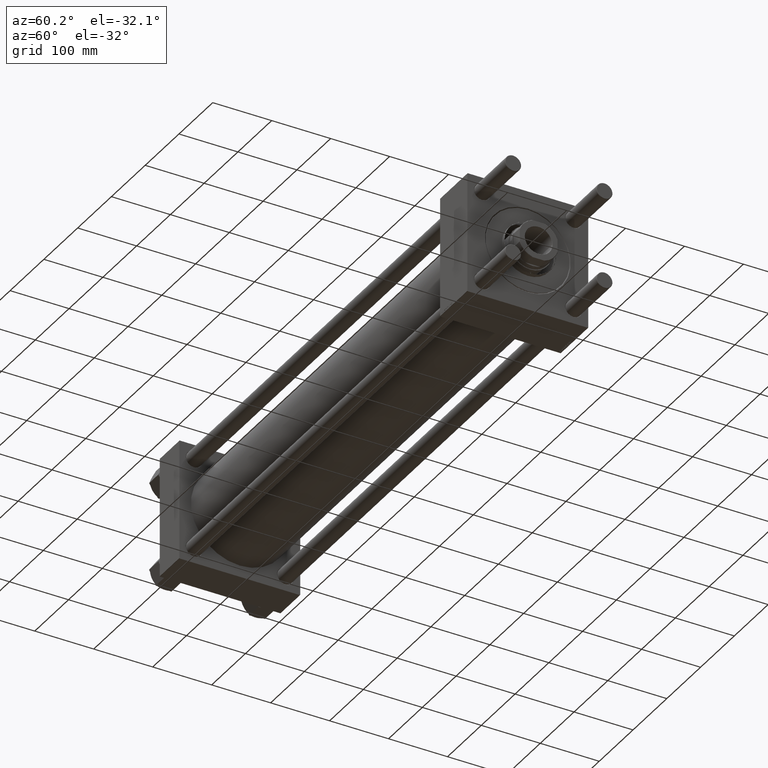
[diagram: clean part render]
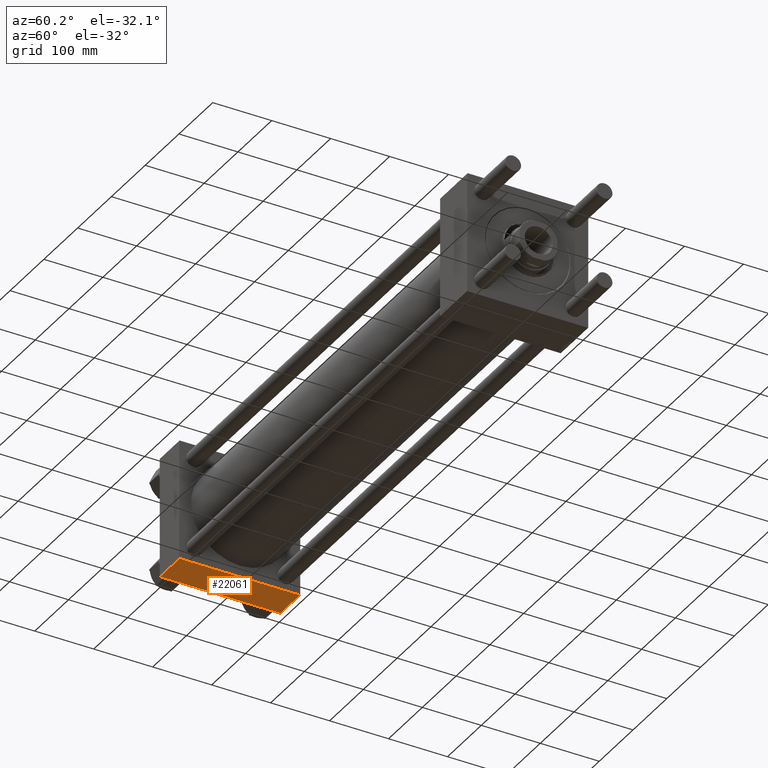
[diagram: same view with one face highlighted and labeled with its STEP entity id]
A machine part, auxiliary view. The second image highlights one B-rep face of the part: STEP entity #22061.
In plain terms, the highlighted planar face has unit normal (0, 0, -1).
Its self-contained STEP definition (entity closure, byte-faithful):
#156 = DIRECTION ( 'NONE',  ( 0.000000000000000000, -1.000000000000000000, -1.353930517835556727E-16 ) ) ;
#2041 = LINE ( 'NONE', #42072, #23202 ) ;
#2717 = EDGE_LOOP ( 'NONE', ( #35838, #53263, #4527, #29725 ) ) ;
#4527 = ORIENTED_EDGE ( 'NONE', *, *, #51958, .T. ) ;
#6100 = DIRECTION ( 'NONE',  ( 0.000000000000000000, -1.000000000000000000, -1.353930517835556727E-16 ) ) ;
#9298 = CARTESIAN_POINT ( 'NONE',  ( 58.00000000000000000, 102.0000000000000142, -102.4999999999999716 ) ) ;
#10466 = LINE ( 'NONE', #45849, #34304 ) ;
#12182 = EDGE_CURVE ( 'NONE', #30940, #18908, #48605, .T. ) ;
#12475 = DIRECTION ( 'NONE',  ( 0.000000000000000000, 1.353930517835556973E-16, -1.000000000000000000 ) ) ;
#13050 = FACE_OUTER_BOUND ( 'NONE', #2717, .T. ) ;
#15231 = VERTEX_POINT ( 'NONE', #44436 ) ;
#15674 = DIRECTION ( 'NONE',  ( -1.000000000000000000, 0.000000000000000000, 0.000000000000000000 ) ) ;
#16620 = CARTESIAN_POINT ( 'NONE',  ( 0.000000000000000000, -101.9999999999999432, -102.5000000000000000 ) ) ;
#18908 = VERTEX_POINT ( 'NONE', #16620 ) ;
#22061 = ADVANCED_FACE ( 'NONE', ( #13050 ), #56883, .T. ) ;
#23202 = VECTOR ( 'NONE', #15674, 1000.000000000000000 ) ;
#23688 = DIRECTION ( 'NONE',  ( 1.000000000000000000, 0.000000000000000000, 0.000000000000000000 ) ) ;
#25204 = CARTESIAN_POINT ( 'NONE',  ( 0.000000000000000000, 102.0000000000000142, -102.4999999999999716 ) ) ;
#29725 = ORIENTED_EDGE ( 'NONE', *, *, #52553, .T. ) ;
#30350 = AXIS2_PLACEMENT_3D ( 'NONE', #38591, #12475, #30757 ) ;
#30757 = DIRECTION ( 'NONE',  ( 0.000000000000000000, 1.000000000000000000, 1.353930517835556973E-16 ) ) ;
#30940 = VERTEX_POINT ( 'NONE', #25204 ) ;
#34304 = VECTOR ( 'NONE', #6100, 1000.000000000000000 ) ;
#35838 = ORIENTED_EDGE ( 'NONE', *, *, #12182, .F. ) ;
#38591 = CARTESIAN_POINT ( 'NONE',  ( 58.00000000000000000, 102.5000000000000284, -102.4999999999999716 ) ) ;
#41668 = LINE ( 'NONE', #55026, #42656 ) ;
#42072 = CARTESIAN_POINT ( 'NONE',  ( 0.000000000000000000, -101.9999999999999432, -102.5000000000000000 ) ) ;
#42656 = VECTOR ( 'NONE', #23688, 1000.000000000000000 ) ;
#44241 = CARTESIAN_POINT ( 'NONE',  ( 0.000000000000000000, 102.5000000000000284, -102.4999999999999716 ) ) ;
#44436 = CARTESIAN_POINT ( 'NONE',  ( 58.00000000000000000, -101.9999999999999432, -102.5000000000000000 ) ) ;
#45018 = VECTOR ( 'NONE', #156, 1000.000000000000000 ) ;
#45849 = CARTESIAN_POINT ( 'NONE',  ( 58.00000000000000000, 102.5000000000000284, -102.4999999999999716 ) ) ;
#47460 = VERTEX_POINT ( 'NONE', #9298 ) ;
#48605 = LINE ( 'NONE', #44241, #45018 ) ;
#51958 = EDGE_CURVE ( 'NONE', #47460, #15231, #10466, .T. ) ;
#52553 = EDGE_CURVE ( 'NONE', #15231, #18908, #2041, .T. ) ;
#53155 = EDGE_CURVE ( 'NONE', #30940, #47460, #41668, .T. ) ;
#53263 = ORIENTED_EDGE ( 'NONE', *, *, #53155, .T. ) ;
#55026 = CARTESIAN_POINT ( 'NONE',  ( 58.00000000000000000, 102.0000000000000142, -102.4999999999999716 ) ) ;
#56883 = PLANE ( 'NONE',  #30350 ) ;